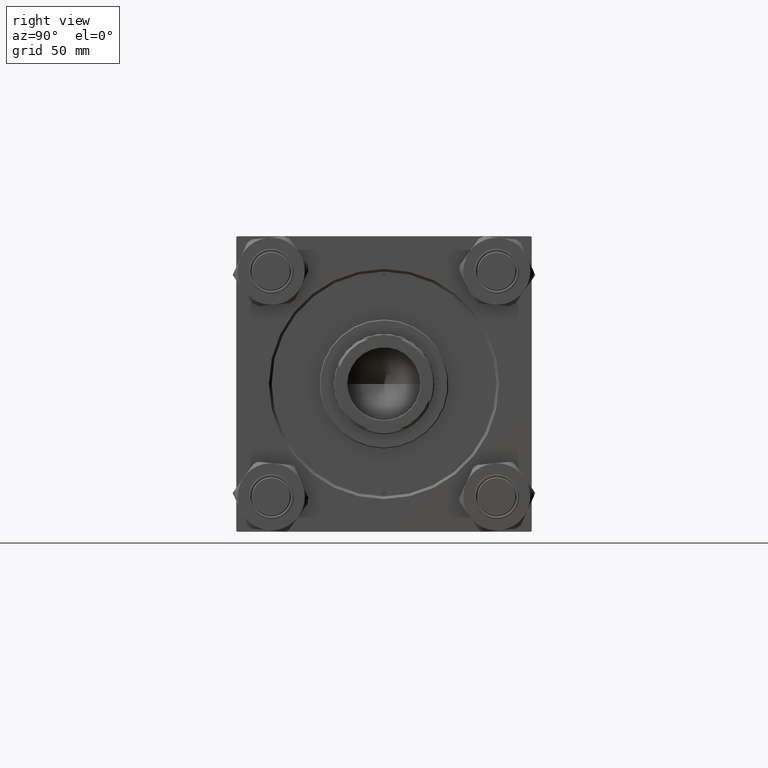
[diagram: clean part render]
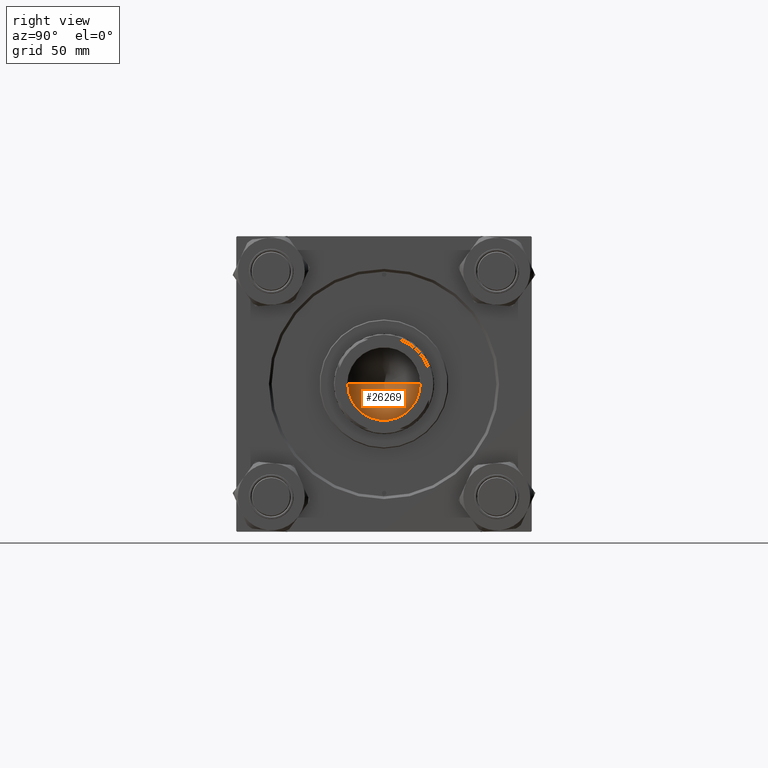
[diagram: same view with one face highlighted and labeled with its STEP entity id]
A machine part, right view. The second image highlights one B-rep face of the part: STEP entity #26269.
In plain terms, the highlighted conical surface has half-angle 59 deg.
Its self-contained STEP definition (entity closure, byte-faithful):
#1697 = FACE_OUTER_BOUND ( 'NONE', #22769, .T. ) ;
#1951 = DIRECTION ( 'NONE',  ( 1.000000000000000000, 0.000000000000000000, 0.000000000000000000 ) ) ;
#3246 = LINE ( 'NONE', #26716, #42001 ) ;
#5408 = ORIENTED_EDGE ( 'NONE', *, *, #11327, .T. ) ;
#7909 = CARTESIAN_POINT ( 'NONE',  ( 20.24999999999998934, 0.000000000000000000, 136.0000000000000000 ) ) ;
#10392 = EDGE_CURVE ( 'NONE', #37546, #49005, #3246, .T. ) ;
#11327 = EDGE_CURVE ( 'NONE', #37546, #41903, #19137, .T. ) ;
#12147 = DIRECTION ( 'NONE',  ( -0.000000000000000000, -0.000000000000000000, 1.000000000000000000 ) ) ;
#13128 = CARTESIAN_POINT ( 'NONE',  ( 20.24999999999998934, 0.000000000000000000, 136.0000000000000000 ) ) ;
#14730 = DIRECTION ( 'NONE',  ( -0.8571673007021115565, 1.049727191138617710E-16, 0.5150380749100554878 ) ) ;
#15381 = AXIS2_PLACEMENT_3D ( 'NONE', #32824, #32573, #1951 ) ;
#17956 = CARTESIAN_POINT ( 'NONE',  ( -1.584115414415908206E-14, 0.000000000000000000, 123.8325724646918786 ) ) ;
#19137 = LINE ( 'NONE', #7909, #25734 ) ;
#22769 = EDGE_LOOP ( 'NONE', ( #39266, #5408, #36217 ) ) ;
#23120 = CARTESIAN_POINT ( 'NONE',  ( 0.000000000000000000, 0.000000000000000000, 136.0000000000000000 ) ) ;
#25734 = VECTOR ( 'NONE', #34693, 1000.000000000000000 ) ;
#26269 = ADVANCED_FACE ( 'NONE', ( #1697 ), #34928, .F. ) ;
#26716 = CARTESIAN_POINT ( 'NONE',  ( -20.24999999999998934, 2.479909768273389117E-15, 136.0000000000000000 ) ) ;
#27494 = EDGE_CURVE ( 'NONE', #41903, #49005, #32521, .T. ) ;
#32521 = CIRCLE ( 'NONE', #46358, 20.24999999999998934 ) ;
#32573 = DIRECTION ( 'NONE',  ( -0.000000000000000000, -0.000000000000000000, 1.000000000000000000 ) ) ;
#32824 = CARTESIAN_POINT ( 'NONE',  ( 0.000000000000000000, 0.000000000000000000, 136.0000000000000000 ) ) ;
#34693 = DIRECTION ( 'NONE',  ( 0.8571673007021115565, 0.000000000000000000, 0.5150380749100554878 ) ) ;
#34928 = CONICAL_SURFACE ( 'NONE', #15381, 20.24999999999998934, 1.029744258676652979 ) ;
#35599 = DIRECTION ( 'NONE',  ( 1.000000000000000000, 0.000000000000000000, 0.000000000000000000 ) ) ;
#36217 = ORIENTED_EDGE ( 'NONE', *, *, #27494, .T. ) ;
#37546 = VERTEX_POINT ( 'NONE', #17956 ) ;
#39266 = ORIENTED_EDGE ( 'NONE', *, *, #10392, .F. ) ;
#39532 = CARTESIAN_POINT ( 'NONE',  ( -20.24999999999998934, 2.479909768273389117E-15, 136.0000000000000000 ) ) ;
#41903 = VERTEX_POINT ( 'NONE', #13128 ) ;
#42001 = VECTOR ( 'NONE', #14730, 1000.000000000000000 ) ;
#46358 = AXIS2_PLACEMENT_3D ( 'NONE', #23120, #12147, #35599 ) ;
#49005 = VERTEX_POINT ( 'NONE', #39532 ) ;